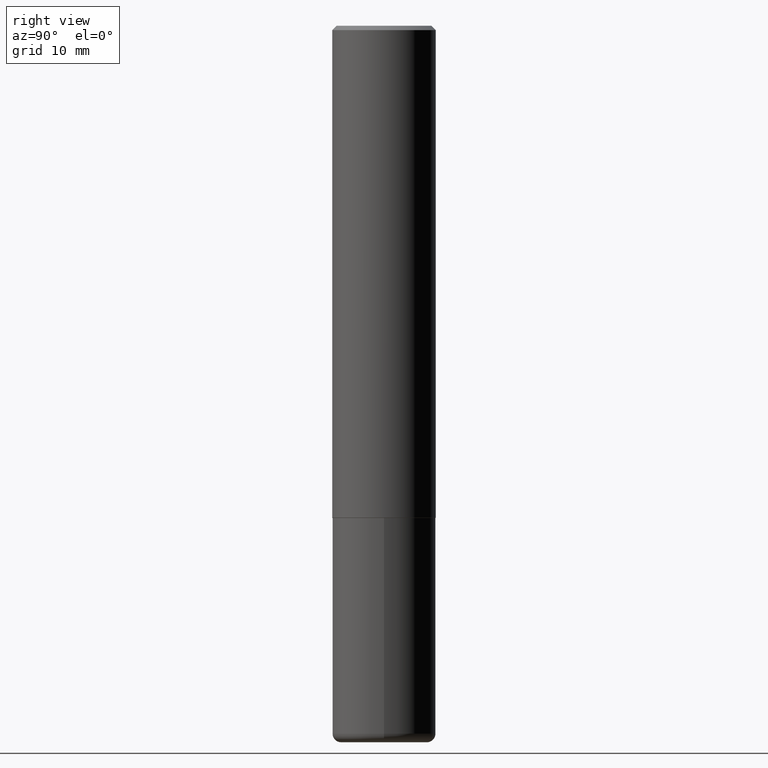
[diagram: clean part render]
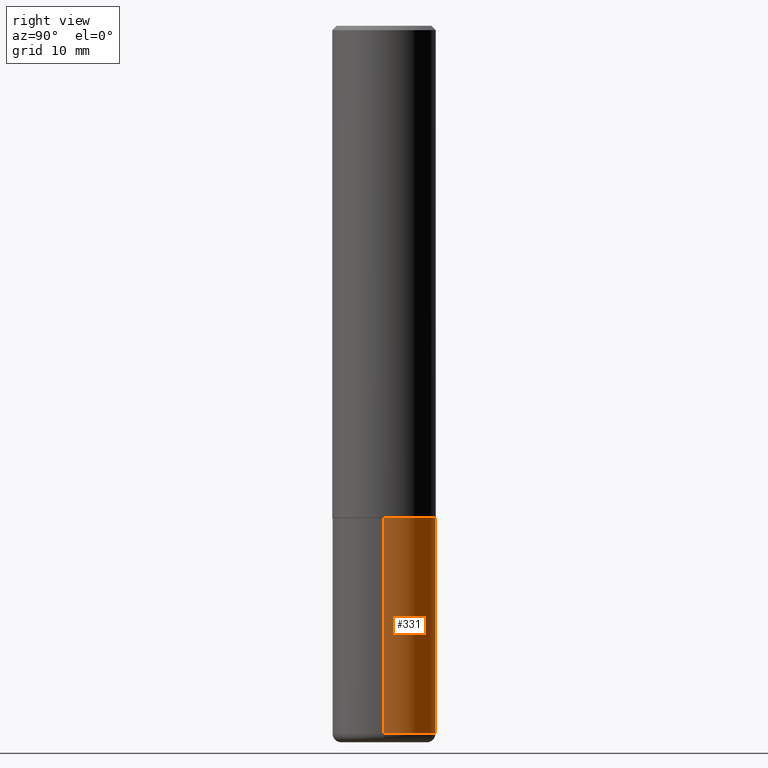
[diagram: same view with one face highlighted and labeled with its STEP entity id]
A machine part, right view. The second image highlights one B-rep face of the part: STEP entity #331.
In plain terms, the highlighted cylindrical surface (partial cylindrical patch) has radius 5.9995 mm, axis along (-0, 0, 1).
Its self-contained STEP definition (entity closure, byte-faithful):
#15 = FACE_OUTER_BOUND ( 'NONE', #134, .T. ) ;
#24 = VERTEX_POINT ( 'NONE', #380 ) ;
#40 = CARTESIAN_POINT ( 'NONE',  ( 5.487876547960065873E-29, -7.835233272497903917E-15, -2.244100000000000428 ) ) ;
#50 = EDGE_CURVE ( 'NONE', #82, #103, #326, .T. ) ;
#57 = CARTESIAN_POINT ( 'NONE',  ( 0.000000000000000000, 0.000000000000000000, 0.000000000000000000 ) ) ;
#59 = DIRECTION ( 'NONE',  ( 1.000000000000000000, -6.982962677686266711E-15, 4.876176775795936353E-29 ) ) ;
#79 = DIRECTION ( 'NONE',  ( -2.445468806185136597E-29, 3.491481338843145583E-15, 1.000000000000000000 ) ) ;
#82 = VERTEX_POINT ( 'NONE', #296 ) ;
#90 = LINE ( 'NONE', #314, #347 ) ;
#96 = VERTEX_POINT ( 'NONE', #299 ) ;
#103 = VERTEX_POINT ( 'NONE', #262 ) ;
#108 = ORIENTED_EDGE ( 'NONE', *, *, #50, .F. ) ;
#114 = AXIS2_PLACEMENT_3D ( 'NONE', #57, #404, #59 ) ;
#120 = ORIENTED_EDGE ( 'NONE', *, *, #308, .F. ) ;
#123 = EDGE_CURVE ( 'NONE', #96, #103, #396, .T. ) ;
#134 = EDGE_LOOP ( 'NONE', ( #228, #310, #108, #120 ) ) ;
#135 = VECTOR ( 'NONE', #145, 39.37007874015748143 ) ;
#145 = DIRECTION ( 'NONE',  ( -2.445468806185136877E-29, 3.491481338843145188E-15, 1.000000000000000000 ) ) ;
#209 = EDGE_CURVE ( 'NONE', #24, #96, #318, .T. ) ;
#228 = ORIENTED_EDGE ( 'NONE', *, *, #209, .T. ) ;
#232 = CARTESIAN_POINT ( 'NONE',  ( -0.2361999999999999933, 1.678301941865356591E-15, -1.161852468318208757E-29 ) ) ;
#245 = DIRECTION ( 'NONE',  ( -2.445468806185136877E-29, 3.491481338843145188E-15, 1.000000000000000000 ) ) ;
#246 = AXIS2_PLACEMENT_3D ( 'NONE', #307, #403, #370 ) ;
#262 = CARTESIAN_POINT ( 'NONE',  ( -0.2361999999999999933, -7.875089297477259967E-15, -2.244100000000000428 ) ) ;
#296 = CARTESIAN_POINT ( 'NONE',  ( 0.2361999999999999933, -9.484609056967400443E-15, -2.244100000000000428 ) ) ;
#299 = CARTESIAN_POINT ( 'NONE',  ( -0.2362000000000000210, -9.593247264321970832E-15, -3.228299999999999947 ) ) ;
#307 = CARTESIAN_POINT ( 'NONE',  ( 7.894706947007477118E-29, -1.127154920618732880E-14, -3.228299999999999947 ) ) ;
#308 = EDGE_CURVE ( 'NONE', #24, #82, #90, .T. ) ;
#310 = ORIENTED_EDGE ( 'NONE', *, *, #123, .T. ) ;
#314 = CARTESIAN_POINT ( 'NONE',  ( 0.2361999999999999933, -1.649375784469496131E-15, 1.151752954443000088E-29 ) ) ;
#318 = CIRCLE ( 'NONE', #246, 0.2361999999999999933 ) ;
#326 = CIRCLE ( 'NONE', #377, 0.2361999999999999933 ) ;
#331 = ADVANCED_FACE ( 'NONE', ( #15 ), #343, .T. ) ;
#343 = CYLINDRICAL_SURFACE ( 'NONE', #114, 0.2361999999999999933 ) ;
#347 = VECTOR ( 'NONE', #245, 39.37007874015748143 ) ;
#363 = DIRECTION ( 'NONE',  ( 1.000000000000000000, -6.982962677686269077E-15, 0.000000000000000000 ) ) ;
#370 = DIRECTION ( 'NONE',  ( 1.000000000000000000, -6.982962677686265133E-15, 0.000000000000000000 ) ) ;
#377 = AXIS2_PLACEMENT_3D ( 'NONE', #40, #79, #363 ) ;
#380 = CARTESIAN_POINT ( 'NONE',  ( 0.2362000000000000210, -1.292092499065682375E-14, -3.228299999999999947 ) ) ;
#396 = LINE ( 'NONE', #232, #135 ) ;
#403 = DIRECTION ( 'NONE',  ( -2.445468806185136597E-29, 3.491481338843145583E-15, 1.000000000000000000 ) ) ;
#404 = DIRECTION ( 'NONE',  ( -2.445468806185136597E-29, 3.491481338843145583E-15, 1.000000000000000000 ) ) ;